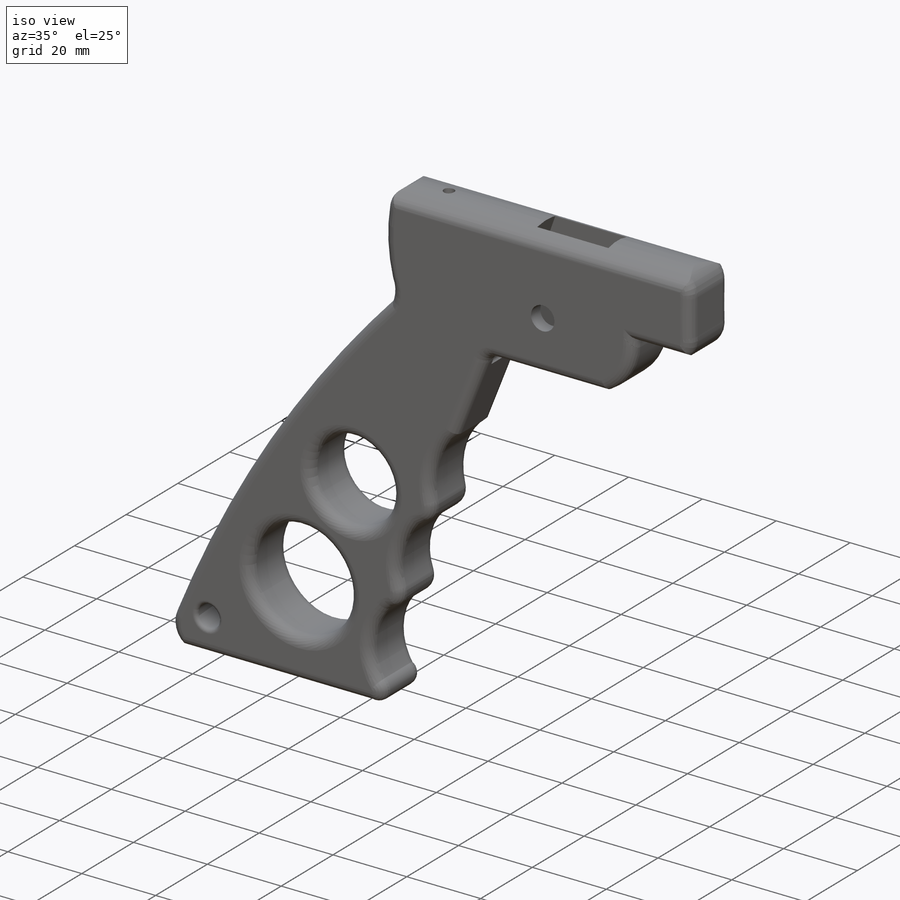
[diagram: iso view]
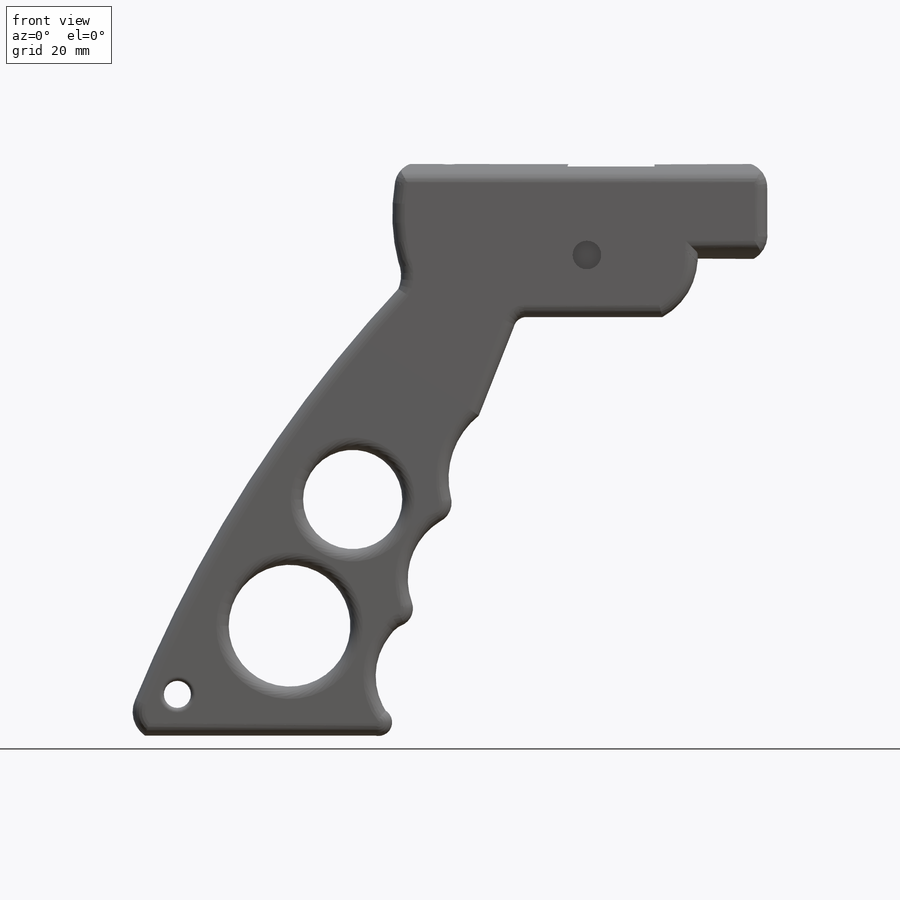
[diagram: front view]
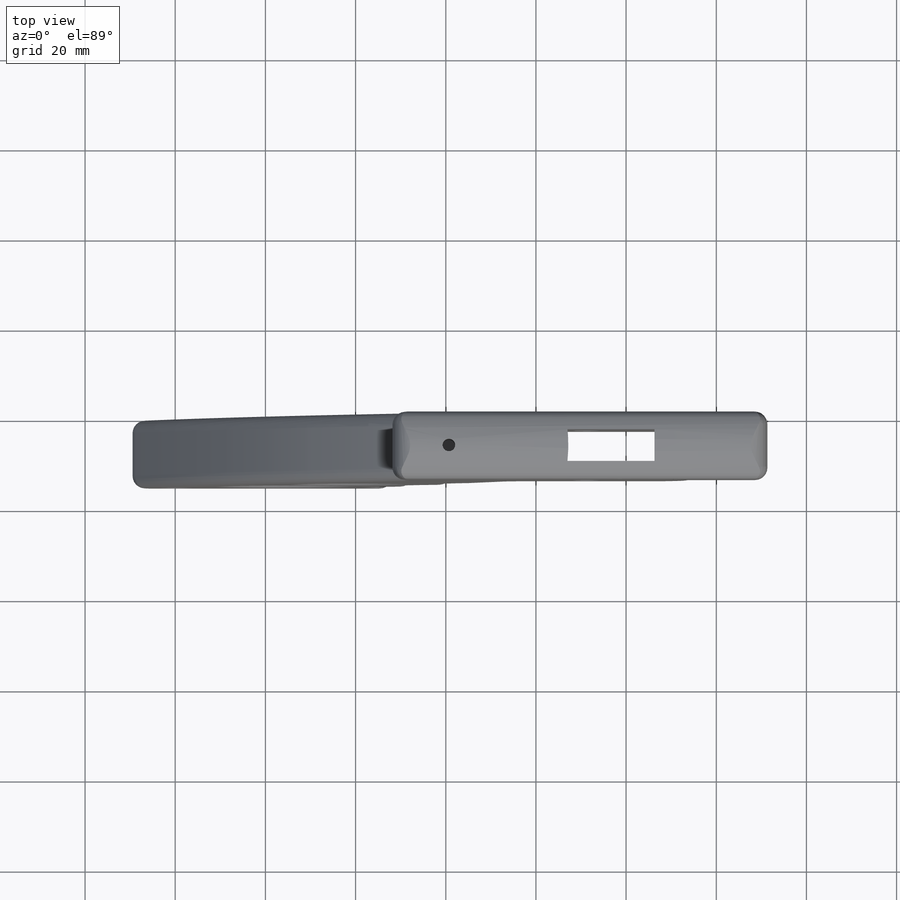
[diagram: top view]
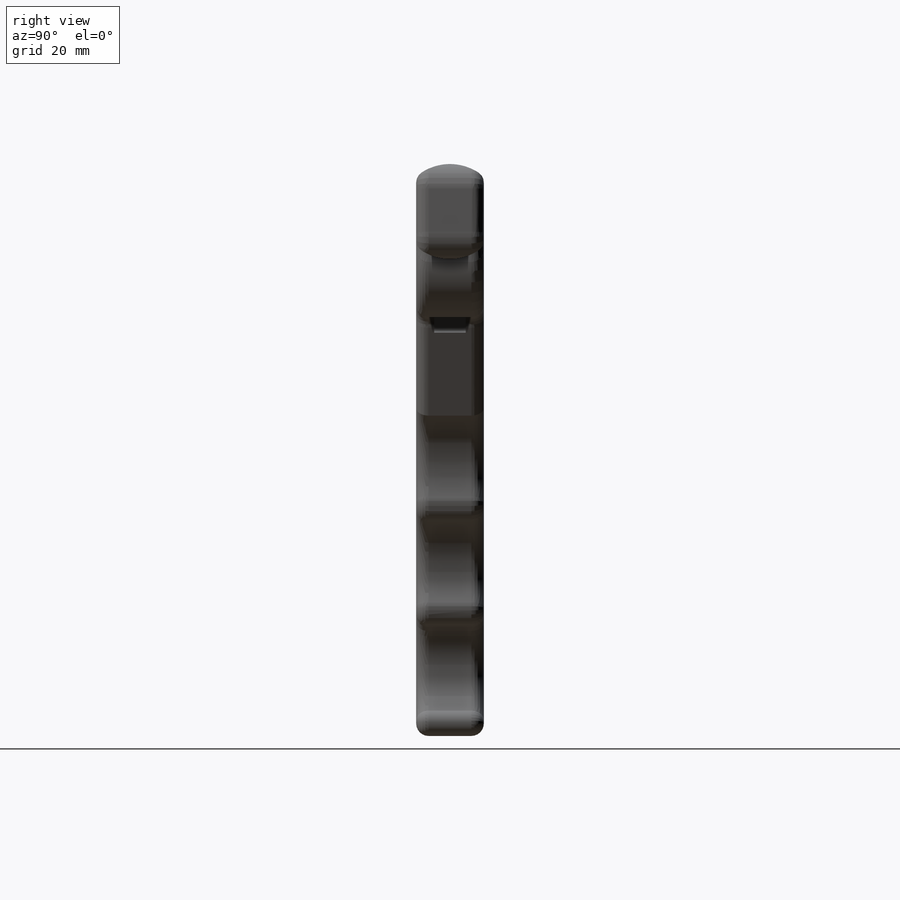
[diagram: right view]
SOLIDWORKS PART (.sldprt)
format: sldprt  version: not decoded by parser v0  size: 720,896 bytes
history: native  units: mm
features: sketch x10, cut_extrude x9, fillet x3, material x1, extrude x1 (+11 scaffold rows collapsed)
feature tree (35):
  scaffold x11  (default folders/planes/origin — collapsed)
  material  "Material <not specified>"
  sketch  "Model"  dims[c1.D3=~31.77819mm c1.D12=9.5mm c1.D13=9.5mm c1.D15=~9.193437mm c1.D5=~6.711653mm c2.D12=~6.586819mm c2.D2=~13.125697mm c3.D12=~2.350894mm c3.D13=~4.294632mm c3.D4=~5.845077mm c4.D13=~4.619186mm c4.D1=~73.912642mm c5.D1=~1.600857deg c6.D1=~38.095511mm c6.D2=79.0mm c6.D3=~79.169316mm c6.D4=~47.662335mm c6.D5=~47.662335mm c7.D4=~47.662335mm c7.D5=~47.662335mm c8.D4=~47.662335mm c8.D3=28.0mm c9.D4=50.0mm c9.D5=25.0mm c9.D6=35.0mm c9.D7=6.0mm c9.D8=6.0mm c9.D9=19.0mm c9.D10=19.0mm c9.D11=19.0mm c9.D12=35.0mm c9.D13=127.0mm c9.D14=127.0mm c9.D15=38.0mm c9.D16=129.0mm c9.D17=127.0mm c9.D18=~97.539502mm c9.D19=~97.539502mm c10.D18=~73.657758mm c10.D5=19.0mm c10.D11=6.0mm c10.D12=3.0mm c11.D11=6.0mm c11.D2=~19.679648mm c11.D3=33.75mm c11.D4=20.0mm c11.D6=~5.769795mm c11.D7=22.0mm c11.D9=28.0mm c11.D12=22.0mm c11.D13=~20.164104mm c11.D14=~23.703381mm c11.D17=~23.703381mm c12.D14=~23.703381mm c12.D17=~23.703381mm c13.D14=~23.703381mm c13.D17=~23.703381mm c14.D14=~23.703381mm c14.D17=~23.703381mm c15.D14=20.0mm c15.D17=~23.703381mm c16.D14=~23.703381mm c16.D17=~23.703381mm c17.D14=~23.703381mm c17.D17=~23.703381mm c18.D14=~23.703381mm c18.D17=~23.703381mm c19.D14=~23.703381mm c19.D13=24.5mm c19.D4=27.0mm c19.D7=33.75mm c20.D7=~11.903552deg c21.D7=41.0mm c21.D9=~42.230749mm c21.D4=29.75mm c22.D9=~17.037189mm c22.D4=27.5mm c22.D7=41.0mm c23.D9=55.0mm c23.D13=55.0mm c23.D3=53.25mm c24.D13=12.25mm]
  extrude  "Boss-Extrude1"  Depth=15mm
  sketch  "Sketch13"  dims[c1.D1=2.8mm c1.D2=7.5mm c1.D3=~10.193095mm c1.D4=9.5mm c2.D3=12.0mm]
  cut_extrude  "Cut-Extrude11"  Depth=13.5mm
  sketch  "Sketch4"  dims[c1.D1=~20.177197mm c1.D3=14.0mm c2.D1=14.0mm c2.D2=28.0mm c2.D3=~28.253571mm]
  cut_extrude  "Cut-Extrude3"  [1 undecoded]
  sketch  "Sketch8"  dims[D5=1.0mm D1=25.0mm D2=25.0mm D3=44.0mm D4=38.0mm D6=31.0mm]
  cut_extrude  "Cut-Extrude8"  Depth=7mm
  sketch  "Sketch5"  dims[c1.D1=~9.545537mm c1.D2=15.0mm c2.D1=15.0mm c2.D2=2.5mm c2.D3=2.5mm]
  cut_extrude  "Cut-Extrude4"  Depth=0.5mm
  sketch  "Sketch6"  dims[D1=6.75mm D2=~3.512649mm D3=~3.512649mm]
  cut_extrude  "Cut-Extrude6"  Depth=15.4mm
  fillet  "Fillet3"  Radius=2.75mm
  fillet  "Fillet4"  Radius=2.75mm
  sketch  "Sketch7"  dims[c1.D1=~5.005993mm c1.D3=3.25mm c2.D1=20.0mm c2.D2=40.0mm c3.D1=~13.734119mm]
  cut_extrude  "Cut-Extrude7"  [1 undecoded]
  sketch  "Sketch9"  dims[D1=6.35mm]
  cut_extrude  "Cut-Extrude9"  Depth=3.6mm
  sketch  "Sketch10"  dims[c1.D1=~9.369299mm c1.D2=~9.450565mm c2.D1=~9.369299mm c2.D2=~9.144507mm]
  cut_extrude  "Cut-Extrude10"  [1 undecoded]
  fillet  "Fillet5"  Radius=1mm
  sketch  "Sketch14"  dims[c1.D1=~3.292174mm c1.D3=2.8mm c2.D1=4.75mm c2.D2=4.75mm c2.D3=30.0mm c2.D4=14.0mm]
  cut_extrude  "Cut-Extrude12"  Depth=13.5mm
decode coverage: 20 of 23 modeling features carry decoded parameters
note: ~ marks probable driven/reference dimensions
note: 3 parameter values undecoded
summary: no parameter record found for 3 features
note: suppression state not decoded; provenance and decode notes live in map.json
